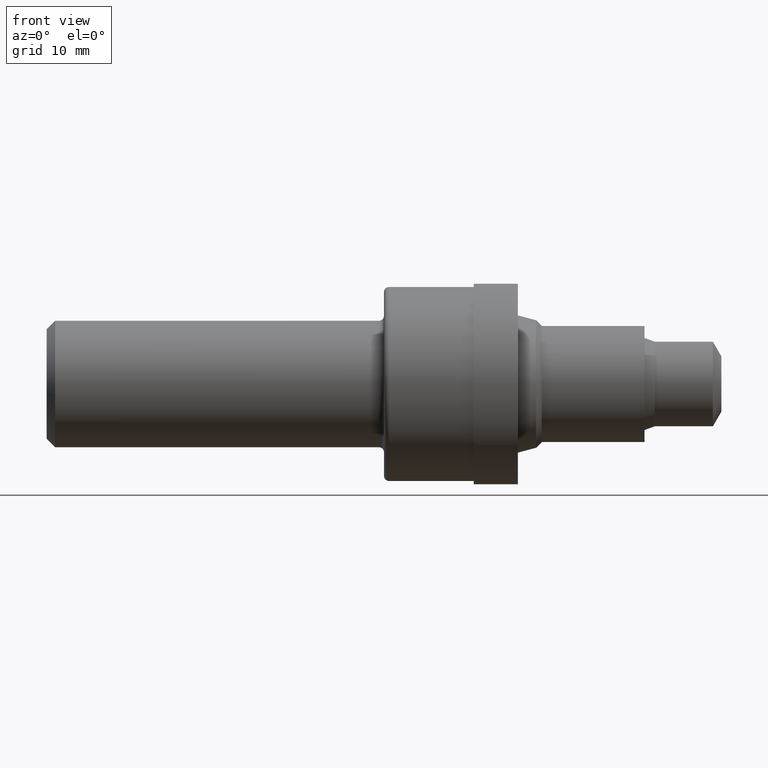
[diagram: clean part render]
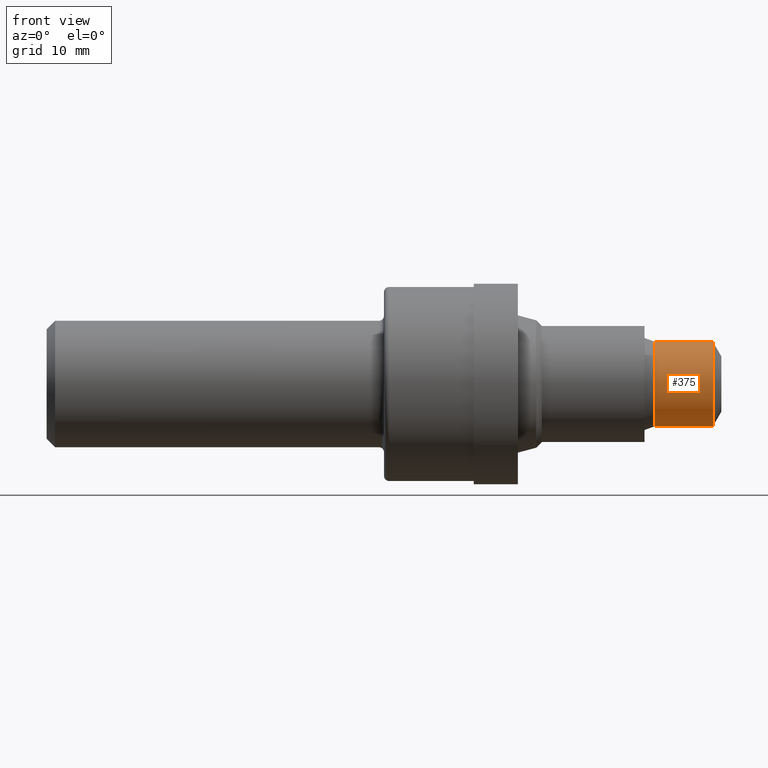
[diagram: same view with one face highlighted and labeled with its STEP entity id]
A machine part, front view. The second image highlights one B-rep face of the part: STEP entity #375.
In plain terms, the highlighted cylindrical surface (partial cylindrical patch) has radius 6.3602 mm, axis along (-1, -0, -0).
Its self-contained STEP definition (entity closure, byte-faithful):
#47 = LINE ( 'NONE', #753, #530 ) ;
#53 = DIRECTION ( 'NONE',  ( 0.0000000000000000000, 0.0000000000000000000, 1.000000000000000000 ) ) ;
#60 = DIRECTION ( 'NONE',  ( -1.000000000000000000, -0.0000000000000000000, -0.0000000000000000000 ) ) ;
#80 = CARTESIAN_POINT ( 'NONE',  ( 3.606000000000000316, 0.0000000000000000000, 0.2504000000000000115 ) ) ;
#95 = CARTESIAN_POINT ( 'NONE',  ( 0.0000000000000000000, 3.066515585064972173E-17, -0.2504000000000000115 ) ) ;
#116 = EDGE_CURVE ( 'NONE', #121, #181, #623, .T. ) ;
#121 = VERTEX_POINT ( 'NONE', #470 ) ;
#122 = AXIS2_PLACEMENT_3D ( 'NONE', #746, #670, #53 ) ;
#181 = VERTEX_POINT ( 'NONE', #205 ) ;
#202 = ORIENTED_EDGE ( 'NONE', *, *, #437, .T. ) ;
#205 = CARTESIAN_POINT ( 'NONE',  ( 3.606000000000000316, 3.204693429602468352E-17, -0.2504000000000000115 ) ) ;
#228 = CIRCLE ( 'NONE', #723, 0.2504000000000000115 ) ;
#259 = CIRCLE ( 'NONE', #292, 0.2504000000000000115 ) ;
#270 = DIRECTION ( 'NONE',  ( -1.000000000000000000, -0.0000000000000000000, -0.0000000000000000000 ) ) ;
#292 = AXIS2_PLACEMENT_3D ( 'NONE', #802, #60, #442 ) ;
#297 = EDGE_CURVE ( 'NONE', #181, #674, #228, .T. ) ;
#324 = EDGE_LOOP ( 'NONE', ( #594, #202, #474, #555 ) ) ;
#337 = DIRECTION ( 'NONE',  ( 0.0000000000000000000, 0.0000000000000000000, 1.000000000000000000 ) ) ;
#375 = ADVANCED_FACE ( 'NONE', ( #801 ), #461, .T. ) ;
#401 = CARTESIAN_POINT ( 'NONE',  ( 3.606000000000000316, 0.0000000000000000000, 0.0000000000000000000 ) ) ;
#437 = EDGE_CURVE ( 'NONE', #121, #551, #259, .T. ) ;
#442 = DIRECTION ( 'NONE',  ( 0.0000000000000000000, 0.0000000000000000000, 1.000000000000000000 ) ) ;
#452 = VECTOR ( 'NONE', #270, 39.37007874015748143 ) ;
#461 = CYLINDRICAL_SURFACE ( 'NONE', #122, 0.2504000000000000115 ) ;
#470 = CARTESIAN_POINT ( 'NONE',  ( 3.950000000000000178, 3.066515585064972173E-17, -0.2504000000000000115 ) ) ;
#474 = ORIENTED_EDGE ( 'NONE', *, *, #509, .T. ) ;
#509 = EDGE_CURVE ( 'NONE', #551, #674, #47, .T. ) ;
#530 = VECTOR ( 'NONE', #558, 39.37007874015748143 ) ;
#551 = VERTEX_POINT ( 'NONE', #817 ) ;
#555 = ORIENTED_EDGE ( 'NONE', *, *, #297, .F. ) ;
#558 = DIRECTION ( 'NONE',  ( -1.000000000000000000, -0.0000000000000000000, -0.0000000000000000000 ) ) ;
#594 = ORIENTED_EDGE ( 'NONE', *, *, #116, .F. ) ;
#623 = LINE ( 'NONE', #95, #452 ) ;
#670 = DIRECTION ( 'NONE',  ( -1.000000000000000000, -0.0000000000000000000, -0.0000000000000000000 ) ) ;
#674 = VERTEX_POINT ( 'NONE', #80 ) ;
#723 = AXIS2_PLACEMENT_3D ( 'NONE', #401, #782, #337 ) ;
#746 = CARTESIAN_POINT ( 'NONE',  ( 0.0000000000000000000, 0.0000000000000000000, 0.0000000000000000000 ) ) ;
#753 = CARTESIAN_POINT ( 'NONE',  ( 0.0000000000000000000, 0.0000000000000000000, 0.2504000000000000115 ) ) ;
#782 = DIRECTION ( 'NONE',  ( -1.000000000000000000, -0.0000000000000000000, -0.0000000000000000000 ) ) ;
#801 = FACE_OUTER_BOUND ( 'NONE', #324, .T. ) ;
#802 = CARTESIAN_POINT ( 'NONE',  ( 3.950000000000000178, 0.0000000000000000000, 0.0000000000000000000 ) ) ;
#817 = CARTESIAN_POINT ( 'NONE',  ( 3.950000000000000178, 0.0000000000000000000, 0.2504000000000000115 ) ) ;